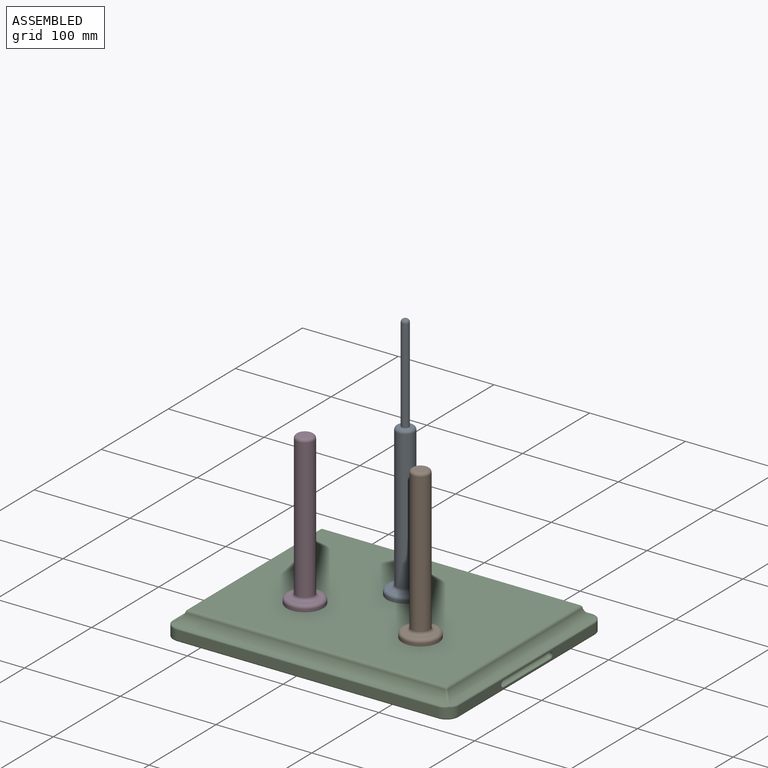
[diagram: assembled view]
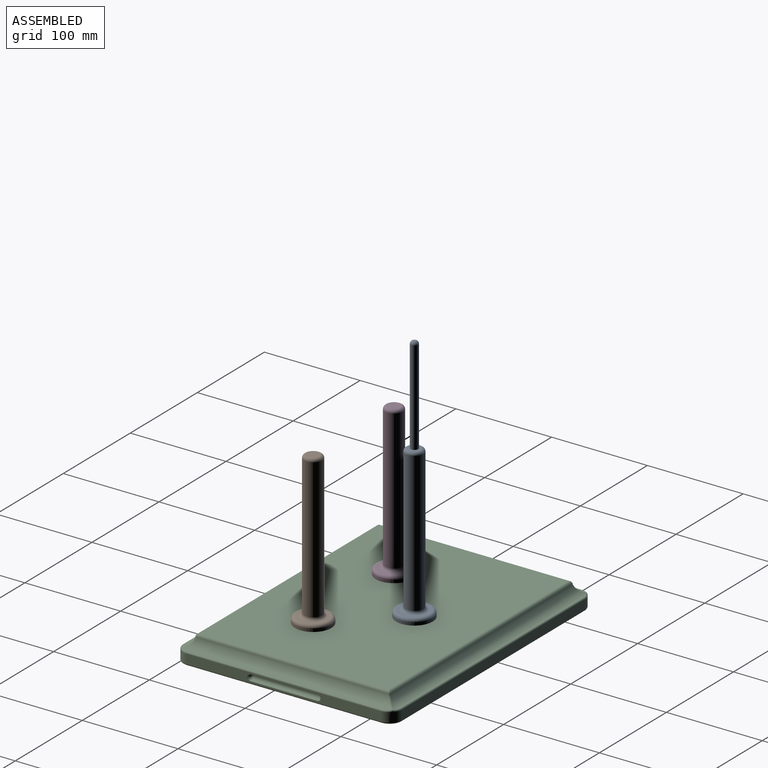
[diagram: assembled view, second angle]
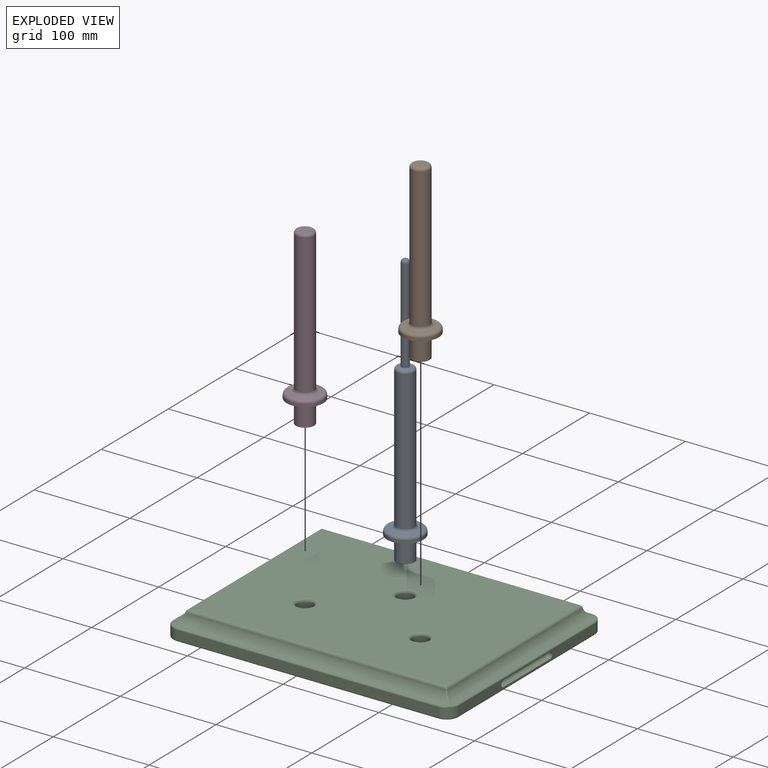
[diagram: exploded view]
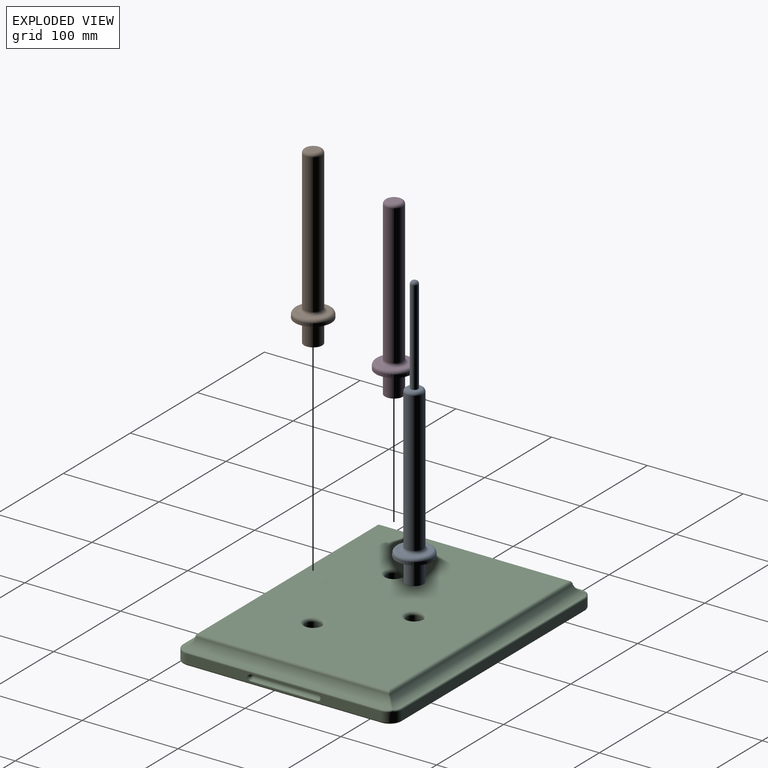
[diagram: exploded view, second angle]
ASSEMBLY  parts=4 mates=6
PART A: 13 faces, bbox 41.2x41.2x284.2 mm
  f0: cylinder r=9.53mm len=23.81mm, axis (0,0,-1), area 1425.1mm2, adj f1,f4
  f1: plane 19.05x19.05mm, normal (0,0,-1), area 285mm2, adj f0
  f2: cylinder r=19.05mm len=38.1mm, axis (0,0,-1), area 380mm2, adj f4,f8
  f3: plane 31.75x31.75mm, normal (0,0,1), area 285mm2, adj f7,f8
  f4: plane 38.1x38.1mm, normal (0,0,-1), area 855.1mm2, adj f0,f2
  f5: cylinder r=9.53mm len=146.05mm, axis (0,0,-1), area 8740.7mm2, adj f7,f9
  f6: plane 12.7x12.7mm, normal (0,0,1), area 77.2mm2, adj f9,f10
  f7: torus R=12.7mm, axis (0,0,1), area 334.6mm2, adj f3,f5
  f8: torus R=15.88mm, axis (0,0,1), area 560.8mm2, adj f2,f3
  f9: torus R=6.35mm, axis (0,0,1), area 262.3mm2, adj f5,f6
  f10: cylinder r=3.97mm len=98.43mm, axis (0,0,-1), area 2454.4mm2, adj f6,f12
  f11: plane 1.59x1.59mm, normal (0,0,1), area 2mm2, adj f12
  f12: torus R=0.79mm, axis (0,0,1), area 88.2mm2, adj f10,f11
PART B: 10 faces, bbox 41.2x41.2x182.6 mm
  f0: cylinder r=9.53mm len=23.81mm, axis (0,0,-1), area 1425.1mm2, adj f1,f4
  f1: plane 19.05x19.05mm, normal (0,0,-1), area 285mm2, adj f0
  f2: cylinder r=19.05mm len=38.1mm, axis (0,0,-1), area 380mm2, adj f4,f8
  f3: plane 31.75x31.75mm, normal (0,0,1), area 285mm2, adj f7,f8
  f4: plane 38.1x38.1mm, normal (0,0,-1), area 855.1mm2, adj f0,f2
  f5: cylinder r=9.53mm len=146.05mm, axis (0,0,-1), area 8740.7mm2, adj f7,f9
  f6: plane 12.7x12.7mm, normal (0,0,1), area 126.7mm2, adj f9
  f7: torus R=12.7mm, axis (0,0,1), area 334.6mm2, adj f3,f5
  f8: torus R=15.88mm, axis (0,0,1), area 560.8mm2, adj f2,f3
  f9: torus R=6.35mm, axis (0,0,1), area 262.3mm2, adj f5,f6
PART C: 73 faces, bbox 300.5x230.7x25.4 mm
  f0: plane 203.2x9.61mm, normal (-1,0,0), area 1478.2mm2, adj f6,f9,f26,f35,f66,f67,f68,f69
  f1: plane 273.05x9.61mm, normal (0,-1,0), area 2625mm2, adj f6,f7,f25,f38
  f2: plane 203.2x9.61mm, normal (1,0,0), area 1478.2mm2, adj f7,f8,f21,f32,f59,f60,f61,f62
  f3: plane 273.05x9.61mm, normal (0,1,0), area 2625mm2, adj f8,f9,f22,f29
  f4: plane 267.34x197.49mm, normal (0,0,1), area 51549.2mm2, adj f40,f41,f42,f43,f44,f45,f46
  f5: plane 295.28x225.43mm, normal (0,0,-1), area 65528.6mm2, adj f17,f18,f19,f20,f21,f22,f23,f24
  f6: cylinder r=12.7mm len=12.7mm, axis (0,0,-1), area 195.8mm2, adj f0,f1,f27,f37,f39
  f7: cylinder r=12.7mm len=12.7mm, axis (0,0,1), area 195.8mm2, adj f1,f2,f23,f34,f36
  f8: cylinder r=12.7mm len=12.7mm, axis (0,0,-1), area 195.8mm2, adj f2,f3,f20,f28,f30
  f9: cylinder r=12.7mm len=12.7mm, axis (0,0,1), area 195.8mm2, adj f0,f3,f24,f31,f33
  f10: cylinder r=12.7mm len=218.92mm, axis (0,-1,0), area 3340.5mm2, adj f33,f35,f37,f45,f48,f57
  f11: cylinder r=12.7mm len=218.92mm, axis (0,-1,0), area 3340.5mm2, adj f30,f32,f34,f44,f51,f54
  f12: cylinder r=12.7mm len=288.77mm, axis (1,0,0), area 4456.5mm2, adj f28,f29,f31,f43,f48,f54
  f13: cylinder r=12.7mm len=288.77mm, axis (1,0,0), area 4456.5mm2, adj f36,f38,f39,f46,f51,f57
  f14: cylinder r=8.33mm len=20.64mm, axis (0,0,1), area 1080.7mm2, adj f19,f40
  f15: cylinder r=8.33mm len=20.64mm, axis (0,0,1), area 1080.7mm2, adj f18,f41
  f16: cylinder r=8.33mm len=20.64mm, axis (0,0,1), area 1080.7mm2, adj f17,f42
  f17: torus R=9.92mm, axis (0,0,1), area 139.6mm2, adj f5,f16
  f18: torus R=9.92mm, axis (0,0,1), area 139.6mm2, adj f5,f15
  f19: torus R=9.92mm, axis (0,0,1), area 139.6mm2, adj f5,f14
  f20: torus R=11.11mm, axis (0,0,1), area 47.5mm2, adj f5,f8,f21,f22
  f21: cylinder r=1.59mm len=203.2mm, axis (0,1,0), area 506.7mm2, adj f2,f5,f20,f23
  f22: cylinder r=1.59mm len=273.05mm, axis (-1,0,0), area 680.9mm2, adj f3,f5,f20,f24
  f23: torus R=11.11mm, axis (0,0,1), area 47.5mm2, adj f5,f7,f21,f25
  f24: torus R=11.11mm, axis (0,0,1), area 47.5mm2, adj f5,f9,f22,f26
  f25: cylinder r=1.59mm len=273.05mm, axis (1,0,0), area 680.9mm2, adj f1,f5,f23,f27
  f26: cylinder r=1.59mm len=203.2mm, axis (0,-1,0), area 506.7mm2, adj f0,f5,f24,f27
  f27: torus R=11.11mm, axis (0,0,1), area 47.5mm2, adj f5,f6,f25,f26
  f28: bspline ~11.1x4.89mm, area 21mm2, adj f8,f12,f29,f55
  f29: cylinder r=1.59mm len=273.05mm, axis (1,0,0), area 632.6mm2, adj f3,f12,f28,f31
  f30: bspline ~11.1x4.89mm, area 21mm2, adj f8,f11,f32,f55
  f31: bspline ~11.1x4.89mm, area 21mm2, adj f9,f12,f29,f47
  f32: cylinder r=1.59mm len=203.2mm, axis (0,-1,0), area 470.8mm2, adj f2,f11,f30,f34
  f33: bspline ~11.1x4.89mm, area 21mm2, adj f9,f10,f35,f47
  f34: bspline ~11.1x4.89mm, area 21mm2, adj f7,f11,f32,f50
  f35: cylinder r=1.59mm len=203.2mm, axis (0,-1,0), area 470.8mm2, adj f0,f10,f33,f37
  f36: bspline ~11.1x4.89mm, area 21mm2, adj f7,f13,f38,f50
  f37: bspline ~11.1x4.89mm, area 21mm2, adj f6,f10,f35,f58
  f38: cylinder r=1.59mm len=273.05mm, axis (1,0,0), area 632.6mm2, adj f1,f13,f36,f39
  f39: bspline ~11.1x4.89mm, area 21mm2, adj f6,f13,f38,f58
  f40: torus R=11.51mm, axis (0,0,1), area 297.3mm2, adj f4,f14
  f41: torus R=11.51mm, axis (0,0,1), area 297.3mm2, adj f4,f15
  f42: torus R=11.51mm, axis (0,0,1), area 297.3mm2, adj f4,f16
  f43: cylinder r=3.17mm len=270.45mm, axis (1,0,0), area 1170.5mm2, adj f4,f12,f49,f53
  f44: cylinder r=3.17mm len=200.6mm, axis (0,-1,0), area 866.8mm2, adj f4,f11,f52,f53
  f45: cylinder r=3.17mm len=200.6mm, axis (0,-1,0), area 866.8mm2, adj f4,f10,f49,f56
  f46: cylinder r=3.17mm len=270.45mm, axis (1,0,0), area 1170.5mm2, adj f4,f13,f52,f56
  f47: sphere r=1.59mm, area 0.9mm2, adj f31,f33,f48
  f48: bspline ~10.82x10.82mm, area 26.6mm2, adj f10,f12,f47,f49
  f49: bspline ~3.13x3.13mm, area 6.5mm2, adj f43,f45,f48
  f50: sphere r=1.59mm, area 0.9mm2, adj f34,f36,f51
  f51: bspline ~10.82x10.82mm, area 26.6mm2, adj f11,f13,f50,f52
  f52: bspline ~3.13x3.13mm, area 6.5mm2, adj f44,f46,f51
  f53: bspline ~3.13x3.13mm, area 6.5mm2, adj f43,f44,f54
  f54: bspline ~10.82x10.82mm, area 26.6mm2, adj f11,f12,f53,f55
  f55: sphere r=1.59mm, area 0.9mm2, adj f28,f30,f54
  f56: bspline ~3.13x3.13mm, area 6.5mm2, adj f45,f46,f57
  f57: bspline ~10.82x10.82mm, area 26.6mm2, adj f10,f13,f56,f58
  f58: sphere r=1.59mm, area 0.9mm2, adj f37,f39,f57
  f59: cylinder r=3.17mm len=6.35mm, axis (1,0,0), area 15.8mm2, adj f2,f60,f62,f63
  f60: plane 69.85x1.59mm, normal (0,0,1), area 110.9mm2, adj f2,f59,f61,f64
  f61: cylinder r=3.17mm len=6.35mm, axis (1,0,0), area 15.8mm2, adj f2,f60,f62,f65
  f62: plane 69.85x1.59mm, normal (0,0,-1), area 110.9mm2, adj f2,f59,f61,f64
  f63: sphere r=3.17mm, area 31.7mm2, adj f59,f64
  f64: cylinder r=3.17mm len=69.85mm, axis (0,-1,0), area 696.7mm2, adj f60,f62,f63,f65
  f65: sphere r=3.17mm, area 31.7mm2, adj f61,f64
  f66: cylinder r=3.17mm len=6.35mm, axis (-1,0,0), area 15.8mm2, adj f0,f67,f69,f70
  f67: plane 69.85x1.59mm, normal (0,0,1), area 110.9mm2, adj f0,f66,f68,f71
  f68: cylinder r=3.17mm len=6.35mm, axis (-1,0,0), area 15.8mm2, adj f0,f67,f69,f72
  f69: plane 69.85x1.59mm, normal (0,0,-1), area 110.9mm2, adj f0,f66,f68,f71
  f70: sphere r=3.17mm, area 31.7mm2, adj f66,f71
  f71: cylinder r=3.17mm len=69.85mm, axis (0,-1,0), area 696.7mm2, adj f67,f69,f70,f72
  f72: sphere r=3.17mm, area 31.7mm2, adj f68,f71
PART D: same geometry as B
PLACE A t=(81.66,183.51,4.25)mm
PLACE B t=(141.99,120.01,4.25)mm
PLACE C t=(21.34,120.01,4.25)mm fixed
PLACE D t=(21.34,120.01,4.25)mm
MATE cylindrical D.f0 <-> C.f15  axis (0,0,-1) through (-38.99,88.26,112.2)mm
MATE cylindrical C.f14 <-> B.f0  axis (0,0,1) through (81.66,88.26,29.65)mm
MATE cylindrical A.f0 <-> C.f16  axis (0,0,-1) through (21.34,151.76,112.2)mm
MATE planar B.f0 <-> C.f4  axis (0,0,-1) through (81.66,88.26,29.65)mm
MATE planar A.f0 <-> C.f4  axis (0,0,-1) through (21.34,151.76,29.65)mm
MATE planar D.f0 <-> C.f4  axis (0,0,-1) through (-38.99,88.26,29.65)mm
